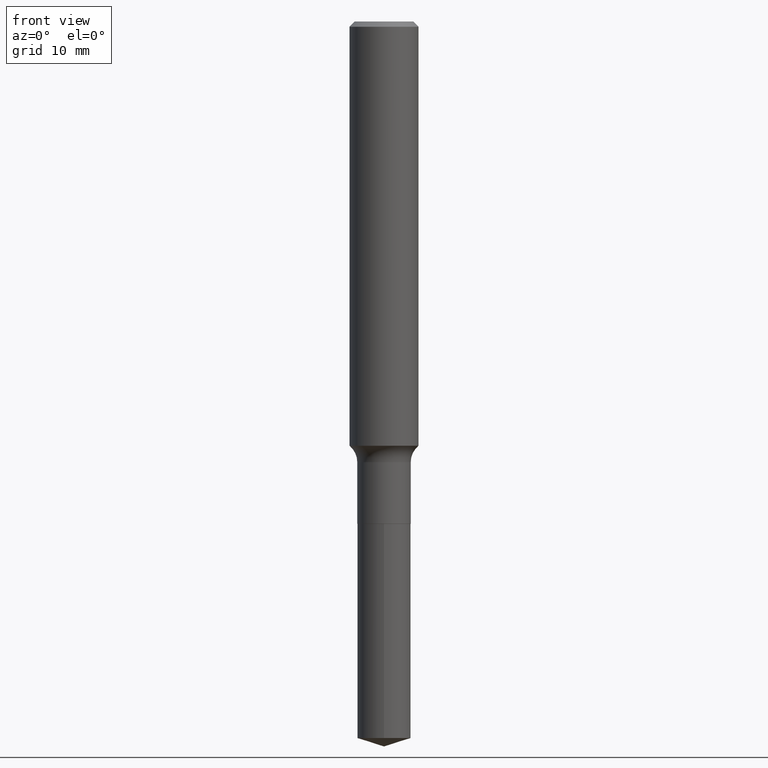
[diagram: clean part render]
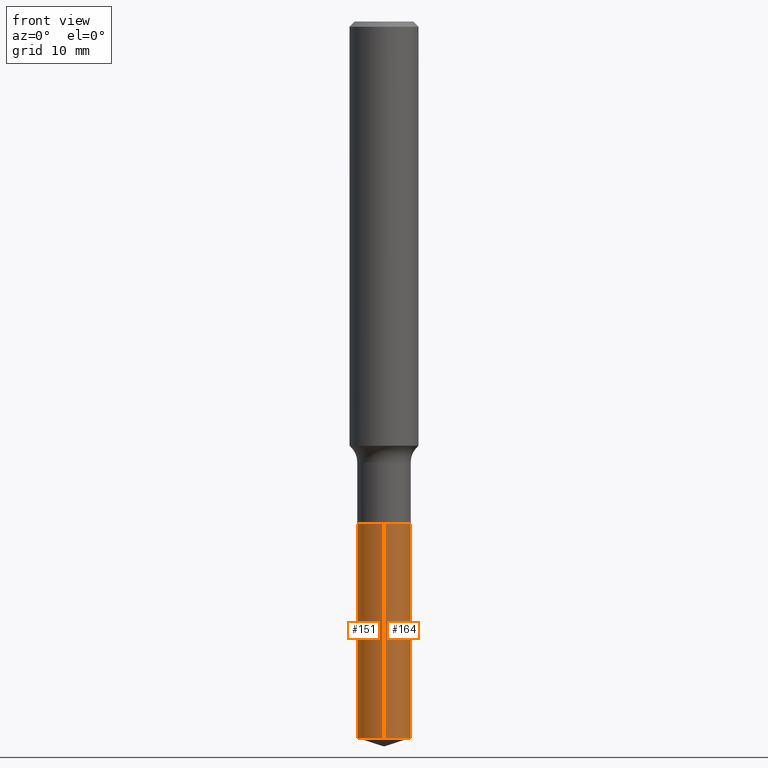
[diagram: same view with one multi-face feature highlighted, each face labeled with its STEP entity id]
A machine part, front view. The highlighted faces form ONE feature: a constant-radius fillet chain: 2 tangent blend faces with common blend radius 2.4575 mm. The faces share edges in the B-rep.
Their STEP definitions:
[1] entity #164 (Cylinder):
#25 = DIRECTION ( 'NONE',  ( -2.445445033381510289E-29, 3.491515382851002503E-15, 1.000000000000000000 ) ) ;
#31 = DIRECTION ( 'NONE',  ( -2.445445033381510289E-29, 3.491515382851002503E-15, 1.000000000000000000 ) ) ;
#37 = DIRECTION ( 'NONE',  ( -2.445445033381510289E-29, 3.491515382851002503E-15, 1.000000000000000000 ) ) ;
#47 = VECTOR ( 'NONE', #185, 39.37007874015748143 ) ;
#56 = CARTESIAN_POINT ( 'NONE',  ( 4.447085024047671457E-29, -6.349258814686260126E-15, -1.818500000000000005 ) ) ;
#76 = AXIS2_PLACEMENT_3D ( 'NONE', #477, #427, #392 ) ;
#92 = CARTESIAN_POINT ( 'NONE',  ( -6.756016390661017652E-16, -0.09675000000000634481, -1.818499999999999783 ) ) ;
#133 = EDGE_CURVE ( 'NONE', #268, #155, #434, .T. ) ;
#134 = DIRECTION ( 'NONE',  ( -6.982962677686265922E-15, -1.000000000000000000, 2.823615497327403880E-15 ) ) ;
#141 = VERTEX_POINT ( 'NONE', #279 ) ;
#155 = VERTEX_POINT ( 'NONE', #173 ) ;
#158 = ORIENTED_EDGE ( 'NONE', *, *, #451, .F. ) ;
#160 = ORIENTED_EDGE ( 'NONE', *, *, #348, .T. ) ;
#164 = ADVANCED_FACE ( 'NONE', ( #484 ), #317, .T. ) ;
#169 = CARTESIAN_POINT ( 'NONE',  ( 6.874500968479413222E-16, 0.09674999999999364664, -1.818500000000000227 ) ) ;
#173 = CARTESIAN_POINT ( 'NONE',  ( 6.874500968479606493E-16, 0.09674999999999366052, -1.818500000000000227 ) ) ;
#185 = DIRECTION ( 'NONE',  ( -2.445445033381510289E-29, 3.491515382851002503E-15, 1.000000000000000000 ) ) ;
#190 = DIRECTION ( 'NONE',  ( -6.982962677686265922E-15, -1.000000000000000000, 5.647230994654807760E-15 ) ) ;
#206 = ORIENTED_EDGE ( 'NONE', *, *, #133, .T. ) ;
#212 = AXIS2_PLACEMENT_3D ( 'NONE', #490, #37, #190 ) ;
#243 = VERTEX_POINT ( 'NONE', #363 ) ;
#249 = EDGE_CURVE ( 'NONE', #243, #155, #380, .T. ) ;
#266 = ORIENTED_EDGE ( 'NONE', *, *, #249, .F. ) ;
#268 = VERTEX_POINT ( 'NONE', #319 ) ;
#279 = CARTESIAN_POINT ( 'NONE',  ( -6.756016390660825367E-16, -0.09675000000000903710, -2.594494842175957050 ) ) ;
#301 = AXIS2_PLACEMENT_3D ( 'NONE', #56, #31, #134 ) ;
#304 = EDGE_LOOP ( 'NONE', ( #160, #206, #266, #158 ) ) ;
#312 = VECTOR ( 'NONE', #25, 39.37007874015748143 ) ;
#317 = CYLINDRICAL_SURFACE ( 'NONE', #76, 0.09675000000000000266 ) ;
#319 = CARTESIAN_POINT ( 'NONE',  ( 6.874500968479600576E-16, 0.09674999999999089884, -2.594494842175958382 ) ) ;
#348 = EDGE_CURVE ( 'NONE', #141, #268, #394, .T. ) ;
#363 = CARTESIAN_POINT ( 'NONE',  ( -6.756016390661017652E-16, -0.09675000000000634481, -1.818499999999999783 ) ) ;
#380 = CIRCLE ( 'NONE', #301, 0.09675000000000000266 ) ;
#392 = DIRECTION ( 'NONE',  ( -6.982962677686265922E-15, -1.000000000000000000, 2.823615497327403880E-15 ) ) ;
#394 = CIRCLE ( 'NONE', #212, 0.09675000000000000266 ) ;
#423 = LINE ( 'NONE', #92, #47 ) ;
#427 = DIRECTION ( 'NONE',  ( -2.445445033381510289E-29, 3.491515382851002503E-15, 1.000000000000000000 ) ) ;
#434 = LINE ( 'NONE', #169, #312 ) ;
#451 = EDGE_CURVE ( 'NONE', #141, #243, #423, .T. ) ;
#477 = CARTESIAN_POINT ( 'NONE',  ( 4.447085024047671457E-29, -6.349258814686260126E-15, -1.818500000000000005 ) ) ;
#484 = FACE_OUTER_BOUND ( 'NONE', #304, .T. ) ;
#490 = CARTESIAN_POINT ( 'NONE',  ( 6.344737756776535245E-29, -9.058656743156652309E-15, -2.594494842175957938 ) ) ;
[2] entity #151 (Cylinder):
#22 = CIRCLE ( 'NONE', #411, 0.09675000000000000266 ) ;
#25 = DIRECTION ( 'NONE',  ( -2.445445033381510289E-29, 3.491515382851002503E-15, 1.000000000000000000 ) ) ;
#47 = VECTOR ( 'NONE', #185, 39.37007874015748143 ) ;
#65 = CYLINDRICAL_SURFACE ( 'NONE', #176, 0.09675000000000000266 ) ;
#74 = DIRECTION ( 'NONE',  ( -2.445445033381510289E-29, 3.491515382851002503E-15, 1.000000000000000000 ) ) ;
#92 = CARTESIAN_POINT ( 'NONE',  ( -6.756016390661017652E-16, -0.09675000000000634481, -1.818499999999999783 ) ) ;
#96 = CARTESIAN_POINT ( 'NONE',  ( 4.447085024047671457E-29, -6.349258814686260126E-15, -1.818500000000000005 ) ) ;
#111 = CARTESIAN_POINT ( 'NONE',  ( 6.344737756776535245E-29, -9.058656743156652309E-15, -2.594494842175957938 ) ) ;
#133 = EDGE_CURVE ( 'NONE', #268, #155, #434, .T. ) ;
#141 = VERTEX_POINT ( 'NONE', #279 ) ;
#151 = ADVANCED_FACE ( 'NONE', ( #314 ), #65, .T. ) ;
#155 = VERTEX_POINT ( 'NONE', #173 ) ;
#169 = CARTESIAN_POINT ( 'NONE',  ( 6.874500968479413222E-16, 0.09674999999999364664, -1.818500000000000227 ) ) ;
#173 = CARTESIAN_POINT ( 'NONE',  ( 6.874500968479606493E-16, 0.09674999999999366052, -1.818500000000000227 ) ) ;
#176 = AXIS2_PLACEMENT_3D ( 'NONE', #96, #430, #284 ) ;
#185 = DIRECTION ( 'NONE',  ( -2.445445033381510289E-29, 3.491515382851002503E-15, 1.000000000000000000 ) ) ;
#189 = ORIENTED_EDGE ( 'NONE', *, *, #451, .T. ) ;
#223 = DIRECTION ( 'NONE',  ( -6.982962677686265922E-15, -1.000000000000000000, 5.647230994654807760E-15 ) ) ;
#243 = VERTEX_POINT ( 'NONE', #363 ) ;
#258 = DIRECTION ( 'NONE',  ( -6.982962677686265922E-15, -1.000000000000000000, 2.823615497327403880E-15 ) ) ;
#268 = VERTEX_POINT ( 'NONE', #319 ) ;
#279 = CARTESIAN_POINT ( 'NONE',  ( -6.756016390660825367E-16, -0.09675000000000903710, -2.594494842175957050 ) ) ;
#284 = DIRECTION ( 'NONE',  ( -6.982962677686265922E-15, -1.000000000000000000, 2.823615497327403880E-15 ) ) ;
#298 = ORIENTED_EDGE ( 'NONE', *, *, #133, .F. ) ;
#312 = VECTOR ( 'NONE', #25, 39.37007874015748143 ) ;
#314 = FACE_OUTER_BOUND ( 'NONE', #320, .T. ) ;
#319 = CARTESIAN_POINT ( 'NONE',  ( 6.874500968479600576E-16, 0.09674999999999089884, -2.594494842175958382 ) ) ;
#320 = EDGE_LOOP ( 'NONE', ( #298, #420, #189, #449 ) ) ;
#334 = EDGE_CURVE ( 'NONE', #155, #243, #433, .T. ) ;
#363 = CARTESIAN_POINT ( 'NONE',  ( -6.756016390661017652E-16, -0.09675000000000634481, -1.818499999999999783 ) ) ;
#381 = AXIS2_PLACEMENT_3D ( 'NONE', #410, #403, #258 ) ;
#403 = DIRECTION ( 'NONE',  ( -2.445445033381510289E-29, 3.491515382851002503E-15, 1.000000000000000000 ) ) ;
#410 = CARTESIAN_POINT ( 'NONE',  ( 4.447085024047671457E-29, -6.349258814686260126E-15, -1.818500000000000005 ) ) ;
#411 = AXIS2_PLACEMENT_3D ( 'NONE', #111, #74, #223 ) ;
#420 = ORIENTED_EDGE ( 'NONE', *, *, #429, .T. ) ;
#423 = LINE ( 'NONE', #92, #47 ) ;
#429 = EDGE_CURVE ( 'NONE', #268, #141, #22, .T. ) ;
#430 = DIRECTION ( 'NONE',  ( -2.445445033381510289E-29, 3.491515382851002503E-15, 1.000000000000000000 ) ) ;
#433 = CIRCLE ( 'NONE', #381, 0.09675000000000000266 ) ;
#434 = LINE ( 'NONE', #169, #312 ) ;
#449 = ORIENTED_EDGE ( 'NONE', *, *, #334, .F. ) ;
#451 = EDGE_CURVE ( 'NONE', #141, #243, #423, .T. ) ;